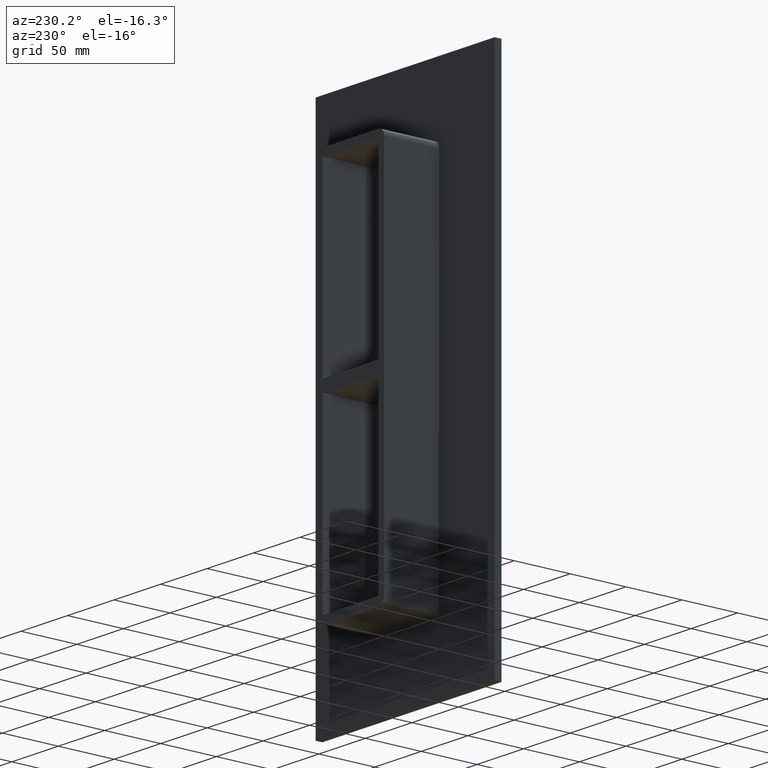
[diagram: clean part render]
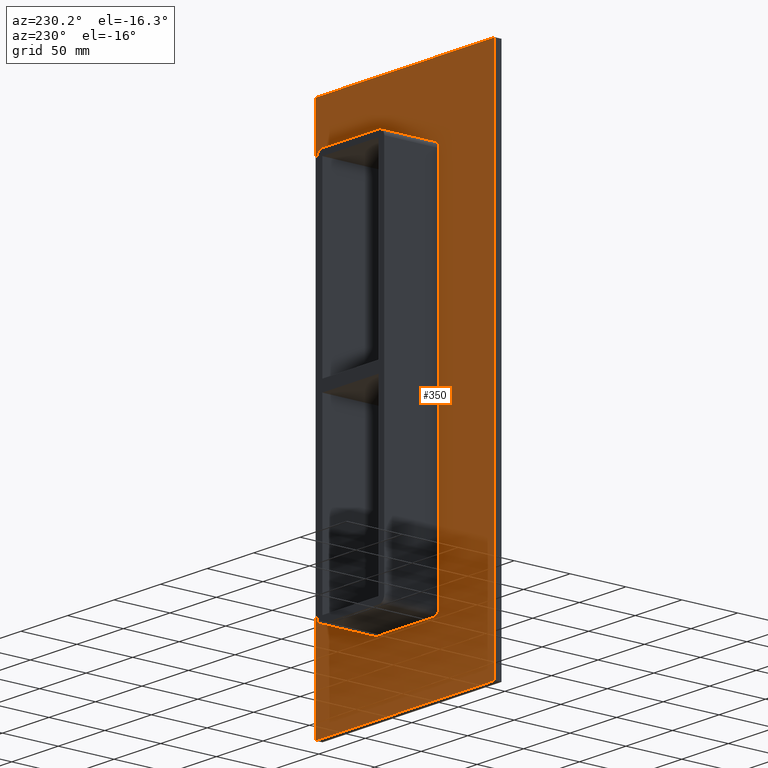
[diagram: same view with one face highlighted and labeled with its STEP entity id]
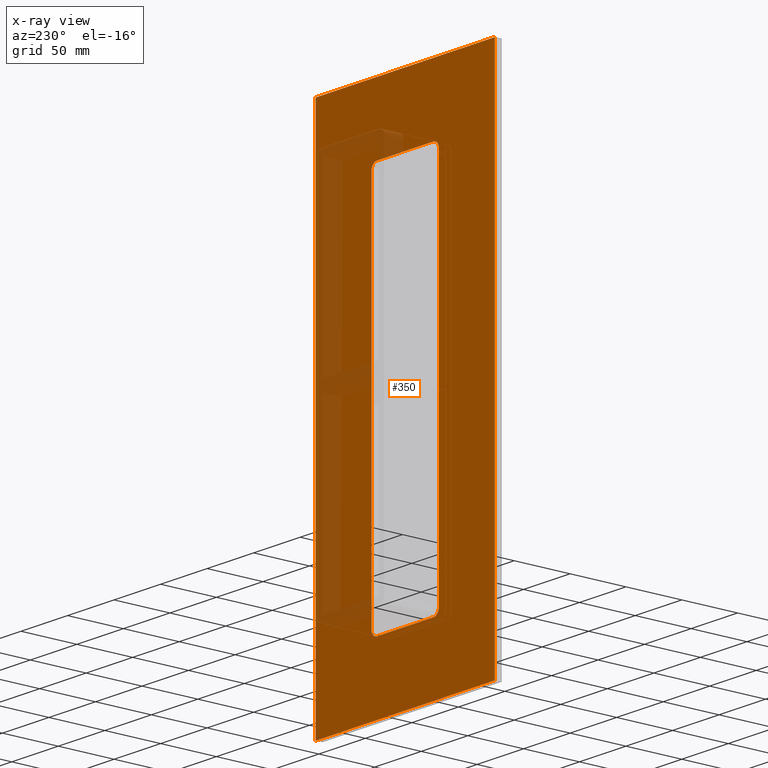
[diagram: x-ray of the same camera — body ghosted, the highlighted face saturated]
A machine part, auxiliary view. The second image highlights one B-rep face of the part: STEP entity #350.
The next image is the same camera in x-ray: the body ghosted, the highlighted face saturated — about 17% of this face is hidden behind the body in this view.
In plain terms, the highlighted planar face has unit normal (0, 1, 0).
Its self-contained STEP definition (entity closure, byte-faithful):
#241=CARTESIAN_POINT('',(0.0,6.000000000000001,-1.957118E-014));
#242=DIRECTION('',(0.0,1.0,0.0));
#243=DIRECTION('',(0.0,0.0,1.0));
#244=AXIS2_PLACEMENT_3D('',#241,#242,#243);
#245=PLANE('',#244);
#246=CARTESIAN_POINT('',(96.25,6.000000000000001,-230.50000000000009));
#247=VERTEX_POINT('',#246);
#248=CARTESIAN_POINT('',(-96.25,6.000000000000001,-230.50000000000009));
#249=VERTEX_POINT('',#248);
#250=CARTESIAN_POINT('',(96.25,6.000000000000001,-230.50000000000009));
#251=DIRECTION('',(-1.0,0.0,0.0));
#252=VECTOR('',#251,192.5);
#253=LINE('',#250,#252);
#254=EDGE_CURVE('',#247,#249,#253,.T.);
#255=ORIENTED_EDGE('',*,*,#254,.T.);
#256=CARTESIAN_POINT('',(-96.25,6.000000000000001,230.5));
#257=VERTEX_POINT('',#256);
#258=CARTESIAN_POINT('',(-96.25,6.000000000000001,-230.50000000000009));
#259=DIRECTION('',(0.0,0.0,1.0));
#260=VECTOR('',#259,461.00000000000011);
#261=LINE('',#258,#260);
#262=EDGE_CURVE('',#249,#257,#261,.T.);
#263=ORIENTED_EDGE('',*,*,#262,.T.);
#264=CARTESIAN_POINT('',(96.25,6.000000000000001,230.5));
#265=VERTEX_POINT('',#264);
#266=CARTESIAN_POINT('',(-96.25,6.000000000000001,230.50000000000006));
#267=DIRECTION('',(1.0,0.0,0.0));
#268=VECTOR('',#267,192.5);
#269=LINE('',#266,#268);
#270=EDGE_CURVE('',#257,#265,#269,.T.);
#271=ORIENTED_EDGE('',*,*,#270,.T.);
#272=CARTESIAN_POINT('',(96.25,6.000000000000001,230.50000000000006));
#273=DIRECTION('',(0.0,0.0,-1.0));
#274=VECTOR('',#273,461.00000000000011);
#275=LINE('',#272,#274);
#276=EDGE_CURVE('',#265,#247,#275,.T.);
#277=ORIENTED_EDGE('',*,*,#276,.T.);
#278=EDGE_LOOP('',(#255,#263,#271,#277));
#279=FACE_OUTER_BOUND('',#278,.T.);
#280=CARTESIAN_POINT('',(30.249999999999986,6.000000000000001,170.49999999999997));
#281=VERTEX_POINT('',#280);
#282=CARTESIAN_POINT('',(36.25,6.000000000000001,164.49999999999994));
#283=VERTEX_POINT('',#282);
#284=CARTESIAN_POINT('',(30.249999999999986,6.000000000000001,164.49999999999994));
#285=DIRECTION('',(0.0,1.0,0.0));
#286=DIRECTION('',(0.0,0.0,1.0));
#287=AXIS2_PLACEMENT_3D('',#284,#285,#286);
#288=CIRCLE('',#287,6.000000000000014);
#289=EDGE_CURVE('',#281,#283,#288,.T.);
#290=ORIENTED_EDGE('',*,*,#289,.F.);
#291=CARTESIAN_POINT('',(-30.249999999999986,6.000000000000001,170.49999999999997));
#292=VERTEX_POINT('',#291);
#293=CARTESIAN_POINT('',(-30.249999999999986,6.000000000000001,170.49999999999997));
#294=DIRECTION('',(1.0,0.0,0.0));
#295=VECTOR('',#294,60.499999999999972);
#296=LINE('',#293,#295);
#297=EDGE_CURVE('',#292,#281,#296,.T.);
#298=ORIENTED_EDGE('',*,*,#297,.F.);
#299=CARTESIAN_POINT('',(-36.25,6.000000000000001,164.49999999999994));
#300=VERTEX_POINT('',#299);
#301=CARTESIAN_POINT('',(-30.249999999999986,6.000000000000001,164.49999999999994));
#302=DIRECTION('',(0.0,1.0,0.0));
#303=DIRECTION('',(-1.0,0.0,0.0));
#304=AXIS2_PLACEMENT_3D('',#301,#302,#303);
#305=CIRCLE('',#304,6.000000000000014);
#306=EDGE_CURVE('',#300,#292,#305,.T.);
#307=ORIENTED_EDGE('',*,*,#306,.F.);
#308=CARTESIAN_POINT('',(-36.25,6.000000000000001,-164.50000000000003));
#309=VERTEX_POINT('',#308);
#310=CARTESIAN_POINT('',(-36.25,6.000000000000001,-164.50000000000003));
#311=DIRECTION('',(0.0,0.0,1.0));
#312=VECTOR('',#311,329.0);
#313=LINE('',#310,#312);
#314=EDGE_CURVE('',#309,#300,#313,.T.);
#315=ORIENTED_EDGE('',*,*,#314,.F.);
#316=CARTESIAN_POINT('',(-30.249999999999986,6.000000000000001,-170.50000000000009));
#317=VERTEX_POINT('',#316);
#318=CARTESIAN_POINT('',(-30.249999999999986,6.000000000000001,-164.50000000000003));
#319=DIRECTION('',(0.0,1.0,0.0));
#320=DIRECTION('',(0.0,0.0,-1.0));
#321=AXIS2_PLACEMENT_3D('',#318,#319,#320);
#322=CIRCLE('',#321,6.000000000000013);
#323=EDGE_CURVE('',#317,#309,#322,.T.);
#324=ORIENTED_EDGE('',*,*,#323,.F.);
#325=CARTESIAN_POINT('',(30.249999999999986,6.000000000000001,-170.50000000000009));
#326=VERTEX_POINT('',#325);
#327=CARTESIAN_POINT('',(30.249999999999986,6.000000000000001,-170.50000000000009));
#328=DIRECTION('',(-1.0,0.0,0.0));
#329=VECTOR('',#328,60.499999999999972);
#330=LINE('',#327,#329);
#331=EDGE_CURVE('',#326,#317,#330,.T.);
#332=ORIENTED_EDGE('',*,*,#331,.F.);
#333=CARTESIAN_POINT('',(36.25,6.000000000000001,-164.50000000000003));
#334=VERTEX_POINT('',#333);
#335=CARTESIAN_POINT('',(30.249999999999986,6.000000000000001,-164.50000000000003));
#336=DIRECTION('',(0.0,1.0,0.0));
#337=DIRECTION('',(1.0,0.0,0.0));
#338=AXIS2_PLACEMENT_3D('',#335,#336,#337);
#339=CIRCLE('',#338,6.000000000000014);
#340=EDGE_CURVE('',#334,#326,#339,.T.);
#341=ORIENTED_EDGE('',*,*,#340,.F.);
#342=CARTESIAN_POINT('',(36.25,6.000000000000001,164.49999999999994));
#343=DIRECTION('',(0.0,0.0,-1.0));
#344=VECTOR('',#343,328.99999999999994);
#345=LINE('',#342,#344);
#346=EDGE_CURVE('',#283,#334,#345,.T.);
#347=ORIENTED_EDGE('',*,*,#346,.F.);
#348=EDGE_LOOP('',(#290,#298,#307,#315,#324,#332,#341,#347));
#349=FACE_BOUND('',#348,.T.);
#350=ADVANCED_FACE('',(#279,#349),#245,.T.);